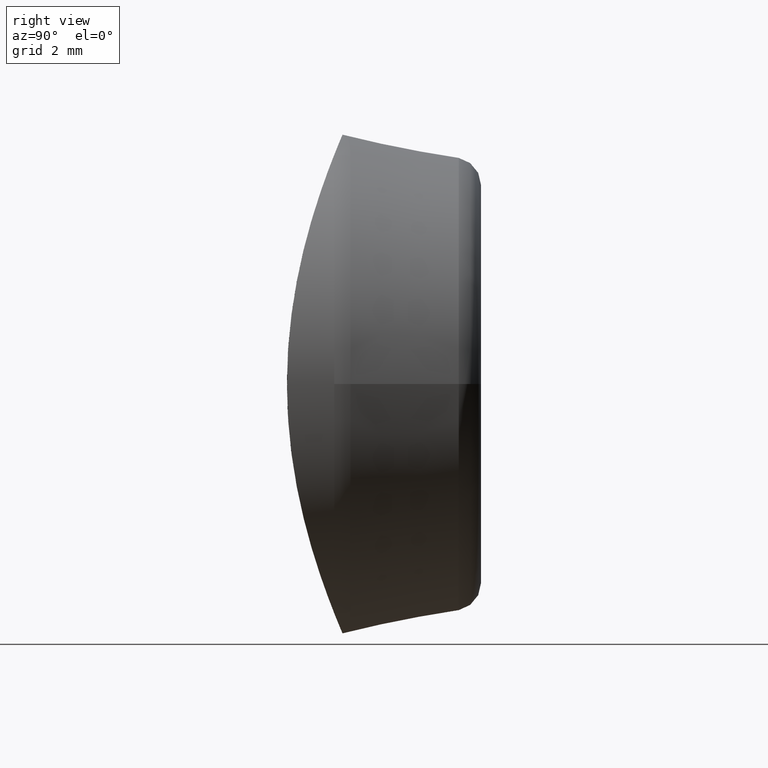
[diagram: clean part render]
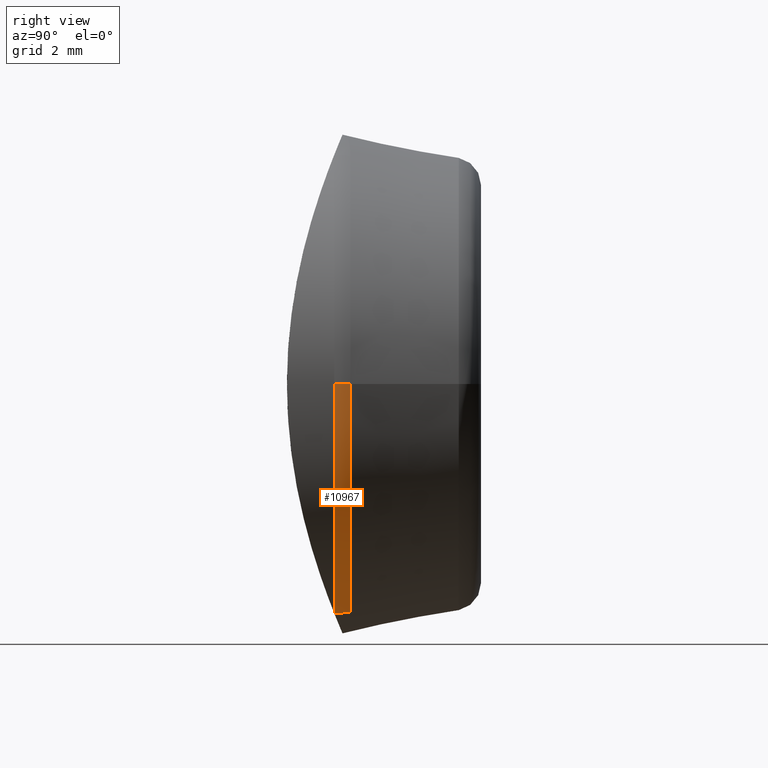
[diagram: same view with one face highlighted and labeled with its STEP entity id]
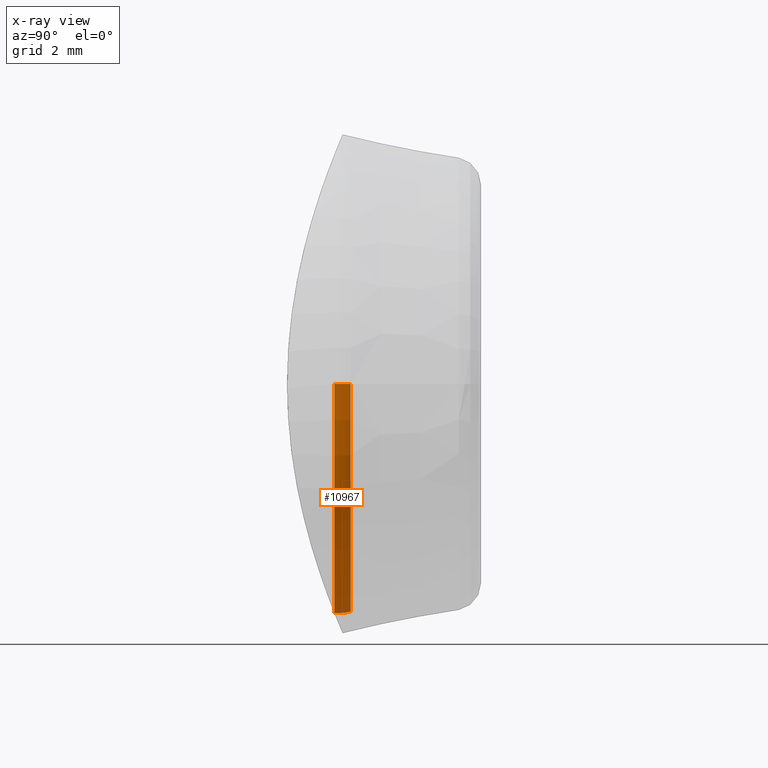
[diagram: x-ray of the same camera — body ghosted, the highlighted face saturated]
A machine part, right view. The second image highlights one B-rep face of the part: STEP entity #10967.
The next image is the same camera in x-ray: the body ghosted, the highlighted face saturated — about 0% of this face is hidden behind the body in this view.
In plain terms, the highlighted toroidal blend (fillet) surface has major radius 6 mm and minor (blend) radius 3 mm.
Its self-contained STEP definition (entity closure, byte-faithful):
#42 = CARTESIAN_POINT ( 'NONE',  ( 1.237191076345109702E-16, -0.2970585407783520315, 0.000000000000000000 ) ) ;
#58 = CARTESIAN_POINT ( 'NONE',  ( 1.391966423491622385E-16, 0.2912898646361993804, 0.000000000000000000 ) ) ;
#303 = EDGE_CURVE ( 'NONE', #12323, #11555, #5828, .T. ) ;
#460 = EDGE_LOOP ( 'NONE', ( #1680, #1355, #10601, #11544 ) ) ;
#666 = VERTEX_POINT ( 'NONE', #7887 ) ;
#1079 = VERTEX_POINT ( 'NONE', #8923 ) ;
#1355 = ORIENTED_EDGE ( 'NONE', *, *, #1809, .T. ) ;
#1680 = ORIENTED_EDGE ( 'NONE', *, *, #4727, .F. ) ;
#1809 = EDGE_CURVE ( 'NONE', #666, #11555, #10365, .T. ) ;
#2012 = AXIS2_PLACEMENT_3D ( 'NONE', #9295, #12314, #11465 ) ;
#2236 = EDGE_CURVE ( 'NONE', #12323, #1079, #4146, .T. ) ;
#2845 = AXIS2_PLACEMENT_3D ( 'NONE', #58, #5856, #6938 ) ;
#4146 = CIRCLE ( 'NONE', #7580, 3.000000000000000444 ) ;
#4232 = CARTESIAN_POINT ( 'NONE',  ( 3.536529139191828541, -0.2970585407783417065, -8.276047465284845472 ) ) ;
#4727 = EDGE_CURVE ( 'NONE', #666, #1079, #9704, .T. ) ;
#5828 = CIRCLE ( 'NONE', #10973, 9.000000000000000000 ) ;
#5856 = DIRECTION ( 'NONE',  ( 5.261350102154445000E-17, 1.000000000000000000, -0.000000000000000000 ) ) ;
#6886 = DIRECTION ( 'NONE',  ( 0.9195608294760777568, 2.349335279806778788E-14, 0.3929476821324542346 ) ) ;
#6938 = DIRECTION ( 'NONE',  ( 1.000000000000000000, -5.456330278163895655E-17, 0.000000000000000000 ) ) ;
#7323 = TOROIDAL_SURFACE ( 'NONE', #12288, 5.999999999999999112, 3.000000000000000000 ) ;
#7580 = AXIS2_PLACEMENT_3D ( 'NONE', #12933, #6886, #12898 ) ;
#7887 = CARTESIAN_POINT ( 'NONE',  ( 8.941742027072759669, 0.2912898646361988808, 0.000000000000000000 ) ) ;
#7888 = DIRECTION ( 'NONE',  ( -2.630675051077222500E-17, -1.000000000000000000, 0.000000000000000000 ) ) ;
#8923 = CARTESIAN_POINT ( 'NONE',  ( 3.513636803764551786, 0.2912898646361995469, -8.222475715376146965 ) ) ;
#9034 = DIRECTION ( 'NONE',  ( 1.000000000000000000, -2.630675051077222500E-17, 0.000000000000000000 ) ) ;
#9041 = FACE_OUTER_BOUND ( 'NONE', #460, .T. ) ;
#9295 = CARTESIAN_POINT ( 'NONE',  ( 5.999999999999999112, -0.2970585407783521426, 0.000000000000000000 ) ) ;
#9704 = CIRCLE ( 'NONE', #2845, 8.941742027072757892 ) ;
#9979 = DIRECTION ( 'NONE',  ( -2.630675051077222500E-17, -1.000000000000000000, 0.000000000000000000 ) ) ;
#10311 = CARTESIAN_POINT ( 'NONE',  ( 9.000000000000000000, -0.2970585407783521981, 0.000000000000000000 ) ) ;
#10365 = CIRCLE ( 'NONE', #2012, 3.000000000000000000 ) ;
#10601 = ORIENTED_EDGE ( 'NONE', *, *, #303, .F. ) ;
#10967 = ADVANCED_FACE ( 'NONE', ( #9041 ), #7323, .T. ) ;
#10973 = AXIS2_PLACEMENT_3D ( 'NONE', #11110, #9979, #11067 ) ;
#11067 = DIRECTION ( 'NONE',  ( 1.000000000000000000, -2.409338161078898811E-17, 0.000000000000000000 ) ) ;
#11110 = CARTESIAN_POINT ( 'NONE',  ( 0.000000000000000000, -0.2970585407783520315, 0.000000000000000000 ) ) ;
#11465 = DIRECTION ( 'NONE',  ( -1.000000000000000000, 0.000000000000000000, 0.000000000000000000 ) ) ;
#11544 = ORIENTED_EDGE ( 'NONE', *, *, #2236, .T. ) ;
#11555 = VERTEX_POINT ( 'NONE', #10311 ) ;
#12288 = AXIS2_PLACEMENT_3D ( 'NONE', #42, #7888, #9034 ) ;
#12314 = DIRECTION ( 'NONE',  ( 0.000000000000000000, -0.000000000000000000, -1.000000000000000000 ) ) ;
#12323 = VERTEX_POINT ( 'NONE', #4232 ) ;
#12898 = DIRECTION ( 'NONE',  ( -0.3929476821324541791, 0.000000000000000000, 0.9195608294760776458 ) ) ;
#12933 = CARTESIAN_POINT ( 'NONE',  ( 2.357686092794706756, -0.2970585407784612775, -5.517364976856494962 ) ) ;